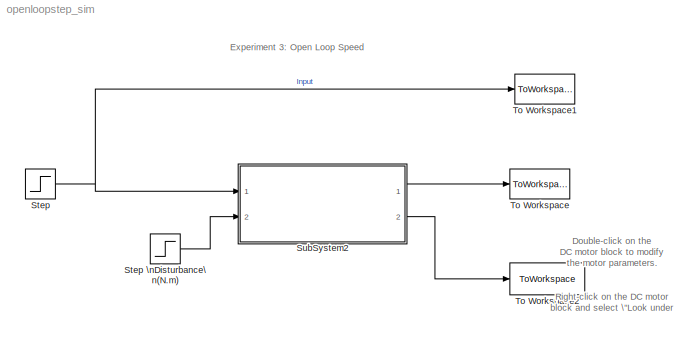
MODEL openloopstep_sim
KIND model
CONFIG StopFcn = save_system(vars.simfilename);
BLOCK [Step] Step
  After = -10
  SID = 1
  SampleTime = 0
  Time = 0
BLOCK [Step] Step \nDisturbance\n(N.m)
  After = 0
  SID = 2
  SampleTime = 0
  Time = 0
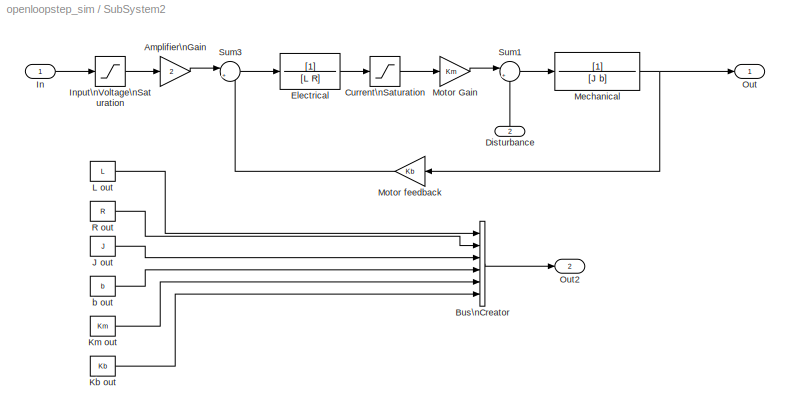
BLOCK [SubSystem] SubSystem2
  FunctionWithSeparateData = off
  MaskCallbackString = |||||
  MaskDisplay = disp('DC Motor (Speed Output)')
  MaskEnableString = on,on,on,on,on,on
  MaskHideContents = off
  MaskIconFrame = on
  MaskIconOpaque = on
  MaskIconRotate = none
  MaskIconUnits = autoscale
  MaskPortRotate = default
  MaskPromptString = Armature Inductance (L [H])|Armature Resistance (R [ohm])|Motor and Load Inertia (J [kg.m^2])|Viscous damping friction (b[kg.m^2/s])|Back emf constant (Kb [V/rad/s])|Motor constant (Km [N.m/A])
  MaskStyleString = edit,edit,edit,edit,edit,edit
  MaskToolTipString = on,on,on,on,on,on
  MaskTunableValueString = on,on,on,on,on,on
  MaskValueString = 0.00056|1.35|0.0019|0.000792|0.10|0.10
  MaskVariables = L=@1;R=@2;J=@3;b=@4;Kb=@5;Km=@6;
  MaskVisibilityString = on,on,on,on,on,on
  MinAlgLoopOccurrences = off
  Opaque = off
  Ports = [2, 2]
  PropExecContextOutsideSubsystem = off
  RTWSystemCode = Auto
  RequestExecContextInheritance = off
  SID = 3
BLOCK [Gain] SubSystem2/Amplifier\nGain
  Gain = 2
  OutDataType = sfix(16)
  OutScaling = 2^0
  ParameterDataType = sfix(16)
  ParameterScaling = 2^0
  SID = 6
BLOCK [BusCreator] SubSystem2/Bus\nCreator
  DisplayOption = bar
  Inputs = 6
  Ports = [6, 1]
  SID = 7
BLOCK [Saturate] SubSystem2/Current\nSaturation
  LowerLimit = -4
  Ports = [1, 1]
  SID = 8
  UpperLimit = +4
BLOCK [Inport] SubSystem2/Disturbance
  IconDisplay = Port number
  OutDataType = sfix(16)
  OutScaling = 2^0
  Port = 2
  SID = 5
BLOCK [TransferFcn] SubSystem2/Electrical
  Denominator = [L R]
  SID = 9
BLOCK [Inport] SubSystem2/In
  IconDisplay = Port number
  OutDataType = sfix(16)
  OutScaling = 2^0
  SID = 4
BLOCK [Saturate] SubSystem2/Input\nVoltage\nSaturation
  LowerLimit = -10
  Ports = [1, 1]
  SID = 10
  UpperLimit = +10
BLOCK [Constant] SubSystem2/J out
  OutDataType = sfix(16)
  OutScaling = 2^0
  SID = 11
  Value = J
BLOCK [Constant] SubSystem2/Kb out
  OutDataType = sfix(16)
  OutScaling = 2^0
  SID = 12
  Value = Kb
BLOCK [Constant] SubSystem2/Km out
  OutDataType = sfix(16)
  OutScaling = 2^0
  SID = 13
  Value = Km
BLOCK [Constant] SubSystem2/L out
  OutDataType = sfix(16)
  OutScaling = 2^0
  SID = 14
  Value = L
BLOCK [TransferFcn] SubSystem2/Mechanical
  Denominator = [J b]
  SID = 15
BLOCK [Gain] SubSystem2/Motor Gain
  Gain = Km
  OutDataType = sfix(16)
  OutScaling = 2^0
  ParameterDataType = sfix(16)
  ParameterScaling = 2^0
  SID = 16
BLOCK [Gain] SubSystem2/Motor feedback
  Gain = Kb
  OutDataType = sfix(16)
  OutScaling = 2^0
  ParameterDataType = sfix(16)
  ParameterScaling = 2^0
  SID = 17
BLOCK [Outport] SubSystem2/Out
  IconDisplay = Port number
  OutDataType = sfix(16)
  OutScaling = 2^0
  SID = 22
BLOCK [Outport] SubSystem2/Out2
  IconDisplay = Port number
  OutDataType = sfix(16)
  OutScaling = 2^0
  Port = 2
  SID = 23
BLOCK [Constant] SubSystem2/R out
  OutDataType = sfix(16)
  OutScaling = 2^0
  SID = 18
  Value = R
BLOCK [Sum] SubSystem2/Sum1
  IconShape = round
  Inputs = |++
  OutDataType = sfix(16)
  OutScaling = 2^0
  Ports = [2, 1]
  SID = 19
BLOCK [Sum] SubSystem2/Sum3
  IconShape = round
  Inputs = |+-
  OutDataType = sfix(16)
  OutScaling = 2^0
  Ports = [2, 1]
  SID = 20
BLOCK [Constant] SubSystem2/b out
  OutDataType = sfix(16)
  OutScaling = 2^0
  SID = 21
  Value = b
BLOCK [ToWorkspace] To Workspace
  MaxDataPoints = inf
  Ports = [1]
  SID = 24
  SampleTime = -1
  SaveFormat = Structure With Time
  VariableName = output
BLOCK [ToWorkspace] To Workspace1
  MaxDataPoints = inf
  Ports = [1]
  SID = 25
  SampleTime = -1
  SaveFormat = Structure With Time
  VariableName = input
BLOCK [ToWorkspace] To Workspace2
  MaxDataPoints = inf
  Ports = [1]
  SID = 26
  SampleTime = -1
  SaveFormat = Array
  VariableName = motorParams
ANNOTATION (root): Double-click on the\nDC motor block to modify \nthe motor parameters.\n\nRight-click on the DC motor\nblock and select \"Look under\nMask\" to see the simulation\nDC motor model.
ANNOTATION (root): Experiment 3: Open Loop Speed
LINE Step \nDisturbance\n(N.m):1 -> SubSystem2:2
NET Step:1 -> SubSystem2:1, To Workspace1:1
LINE SubSystem2/Amplifier\nGain:1 -> SubSystem2/Sum3:1
LINE SubSystem2/Bus\nCreator:1 -> SubSystem2/Out2:1
LINE SubSystem2/Current\nSaturation:1 -> SubSystem2/Motor Gain:1
LINE SubSystem2/Disturbance:1 -> SubSystem2/Sum1:2
LINE SubSystem2/Electrical:1 -> SubSystem2/Current\nSaturation:1
LINE SubSystem2/In:1 -> SubSystem2/Input\nVoltage\nSaturation:1
LINE SubSystem2/Input\nVoltage\nSaturation:1 -> SubSystem2/Amplifier\nGain:1
LINE SubSystem2/J out:1 -> SubSystem2/Bus\nCreator:3
LINE SubSystem2/Kb out:1 -> SubSystem2/Bus\nCreator:6
LINE SubSystem2/Km out:1 -> SubSystem2/Bus\nCreator:5
LINE SubSystem2/L out:1 -> SubSystem2/Bus\nCreator:1
NET SubSystem2/Mechanical:1 -> SubSystem2/Motor feedback:1, SubSystem2/Out:1
LINE SubSystem2/Motor Gain:1 -> SubSystem2/Sum1:1
LINE SubSystem2/Motor feedback:1 -> SubSystem2/Sum3:2
LINE SubSystem2/R out:1 -> SubSystem2/Bus\nCreator:2
LINE SubSystem2/Sum1:1 -> SubSystem2/Mechanical:1
LINE SubSystem2/Sum3:1 -> SubSystem2/Electrical:1
LINE SubSystem2/b out:1 -> SubSystem2/Bus\nCreator:4
LINE SubSystem2:1 -> To Workspace:1
LINE SubSystem2:2 -> To Workspace2:1
note: NET lines group one-source signal fan-out (src -> all destinations, sorted); 1:1 wires keep LINE
